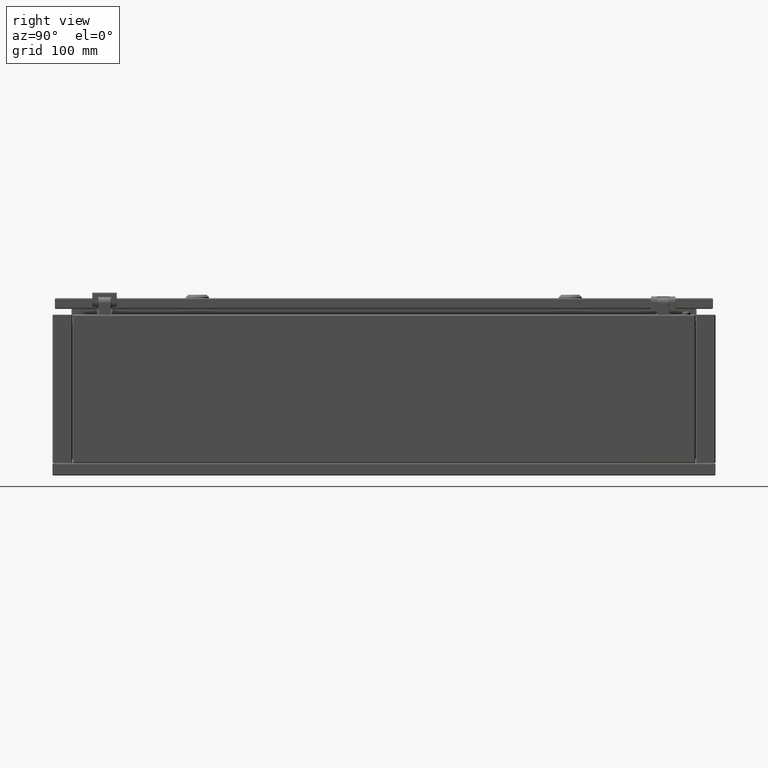
[diagram: clean part render]
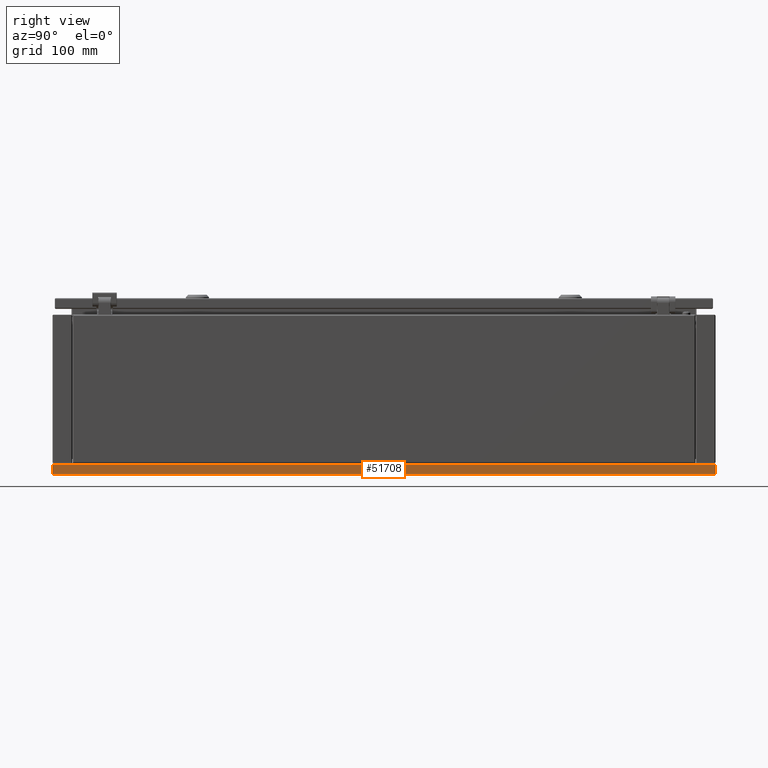
[diagram: same view with one face highlighted and labeled with its STEP entity id]
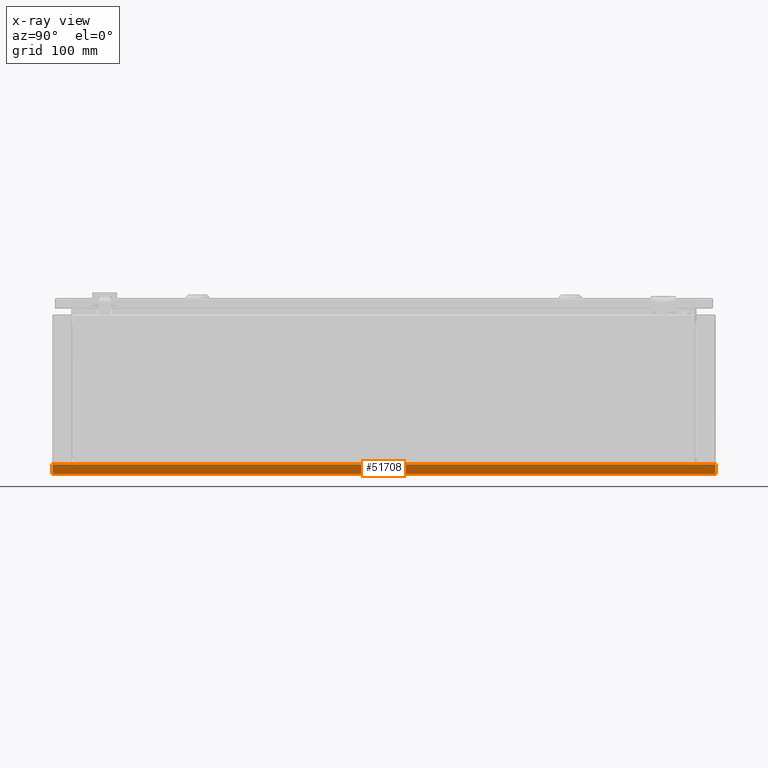
[diagram: x-ray of the same camera — body ghosted, the highlighted face saturated]
A machine part, right view. The second image highlights one B-rep face of the part: STEP entity #51708.
The next image is the same camera in x-ray: the body ghosted, the highlighted face saturated — about 0% of this face is hidden behind the body in this view.
In plain terms, the highlighted planar face has unit normal (-1, -0, 0).
Its self-contained STEP definition (entity closure, byte-faithful):
#804 = CARTESIAN_POINT ( 'NONE',  ( 150.0000000000000000, -400.0000000000000000, 0.4999999999999450400 ) ) ;
#6706 = PLANE ( 'NONE',  #25059 ) ;
#9734 = DIRECTION ( 'NONE',  ( -1.972152263052530000E-031, -1.000000000000000000, 2.386391332776795100E-031 ) ) ;
#10960 = ORIENTED_EDGE ( 'NONE', *, *, #42969, .T. ) ;
#12229 = LINE ( 'NONE', #63119, #80616 ) ;
#12295 = EDGE_CURVE ( 'NONE', #28265, #61684, #28321, .T. ) ;
#13910 = FACE_OUTER_BOUND ( 'NONE', #56216, .T. ) ;
#23880 = DIRECTION ( 'NONE',  ( 4.625929269271480600E-015, -4.625929269271480600E-015, 1.000000000000000000 ) ) ;
#25059 = AXIS2_PLACEMENT_3D ( 'NONE', #74785, #40767, #61339 ) ;
#28265 = VERTEX_POINT ( 'NONE', #66829 ) ;
#28321 = LINE ( 'NONE', #804, #47548 ) ;
#28634 = EDGE_CURVE ( 'NONE', #80730, #61379, #73491, .T. ) ;
#30472 = CARTESIAN_POINT ( 'NONE',  ( 150.0000000000000000, -400.0000000000000000, 0.4999999999998060400 ) ) ;
#30737 = VECTOR ( 'NONE', #9734, 1000.000000000000000 ) ;
#32052 = EDGE_CURVE ( 'NONE', #61684, #61379, #79405, .T. ) ;
#40767 = DIRECTION ( 'NONE',  ( -1.000000000000000000, -6.938893903907198800E-017, 3.965082230804130600E-015 ) ) ;
#41921 = DIRECTION ( 'NONE',  ( 2.312964634635740300E-015, 3.919562412906535000E-031, 1.000000000000000000 ) ) ;
#42969 = EDGE_CURVE ( 'NONE', #28265, #80730, #12229, .T. ) ;
#44049 = CARTESIAN_POINT ( 'NONE',  ( 150.0000000000000000, 398.2928932188135000, 12.50000000000000000 ) ) ;
#45766 = ORIENTED_EDGE ( 'NONE', *, *, #28634, .T. ) ;
#47548 = VECTOR ( 'NONE', #54524, 1000.000000000000000 ) ;
#51708 = ADVANCED_FACE ( 'NONE', ( #13910 ), #6706, .F. ) ;
#54524 = DIRECTION ( 'NONE',  ( 6.938893903907239500E-017, -1.000000000000000000, 6.938893903907249300E-017 ) ) ;
#56216 = EDGE_LOOP ( 'NONE', ( #45766, #86361, #72524, #10960 ) ) ;
#56453 = CARTESIAN_POINT ( 'NONE',  ( 150.0000000000000000, 400.0000000000000000, 12.50000000000000000 ) ) ;
#61339 = DIRECTION ( 'NONE',  ( 3.965082230804130600E-015, 3.863212980085679800E-031, 1.000000000000000000 ) ) ;
#61379 = VERTEX_POINT ( 'NONE', #79881 ) ;
#61684 = VERTEX_POINT ( 'NONE', #83699 ) ;
#63119 = CARTESIAN_POINT ( 'NONE',  ( 150.0000000000000000, 400.0000000000000000, 0.4999999999998620000 ) ) ;
#66829 = CARTESIAN_POINT ( 'NONE',  ( 150.0000000000000000, 400.0000000000000000, 0.4999999999998340200 ) ) ;
#72524 = ORIENTED_EDGE ( 'NONE', *, *, #12295, .F. ) ;
#73491 = LINE ( 'NONE', #44049, #30737 ) ;
#74785 = CARTESIAN_POINT ( 'NONE',  ( 150.0000000000000000, -5.454254949204099800E-015, -7.216449660063520500E-013 ) ) ;
#79405 = LINE ( 'NONE', #30472, #82673 ) ;
#79881 = CARTESIAN_POINT ( 'NONE',  ( 150.0000000000000000, -400.0000000000000000, 12.50000000000000000 ) ) ;
#80616 = VECTOR ( 'NONE', #41921, 1000.000000000000000 ) ;
#80730 = VERTEX_POINT ( 'NONE', #56453 ) ;
#82673 = VECTOR ( 'NONE', #23880, 1000.000000000000000 ) ;
#83699 = CARTESIAN_POINT ( 'NONE',  ( 150.0000000000000000, -400.0000000000000000, 0.4999999999998060400 ) ) ;
#86361 = ORIENTED_EDGE ( 'NONE', *, *, #32052, .F. ) ;